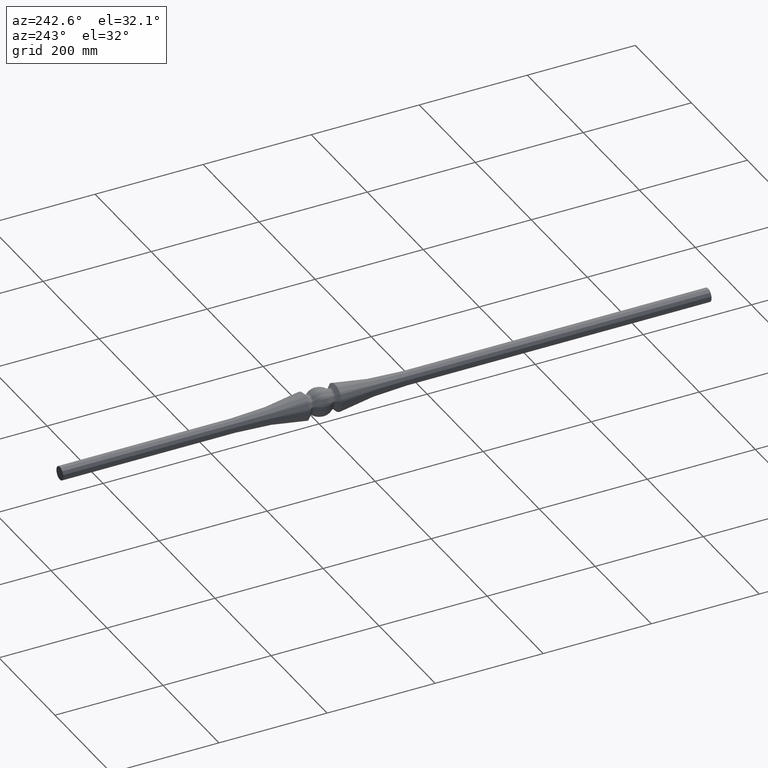
[diagram: clean part render]
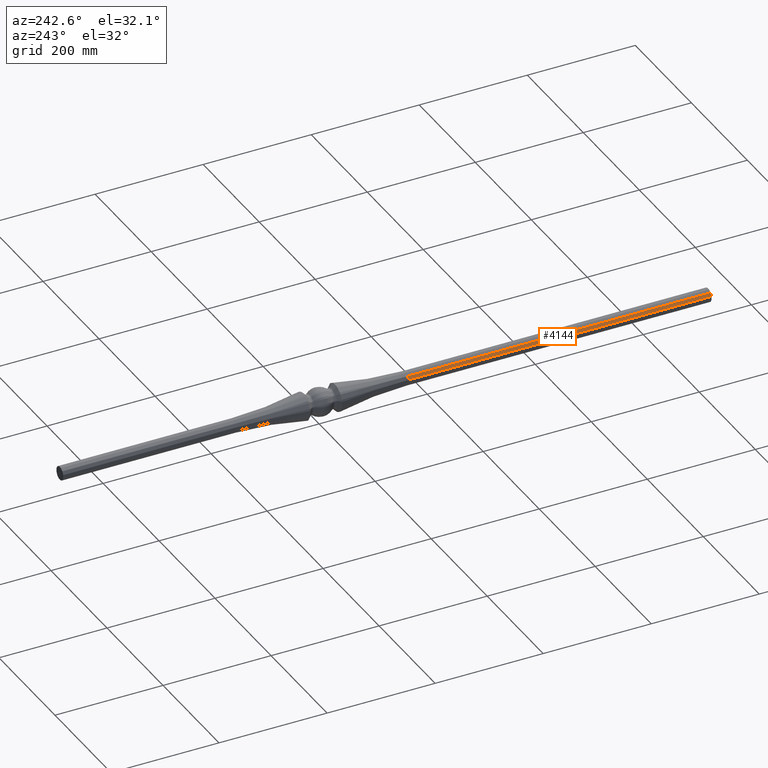
[diagram: same view with one face highlighted and labeled with its STEP entity id]
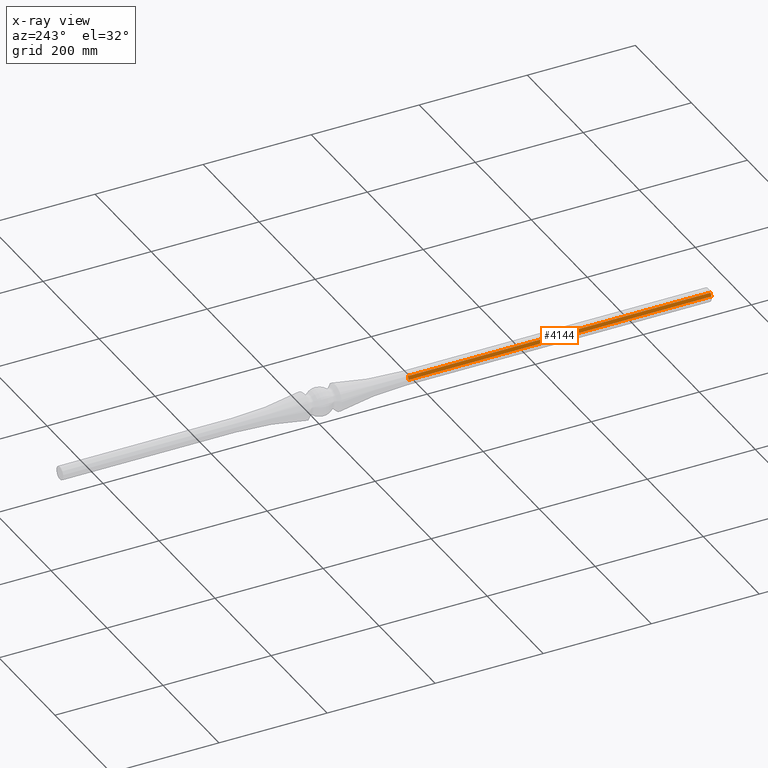
[diagram: x-ray of the same camera — body ghosted, the highlighted face saturated]
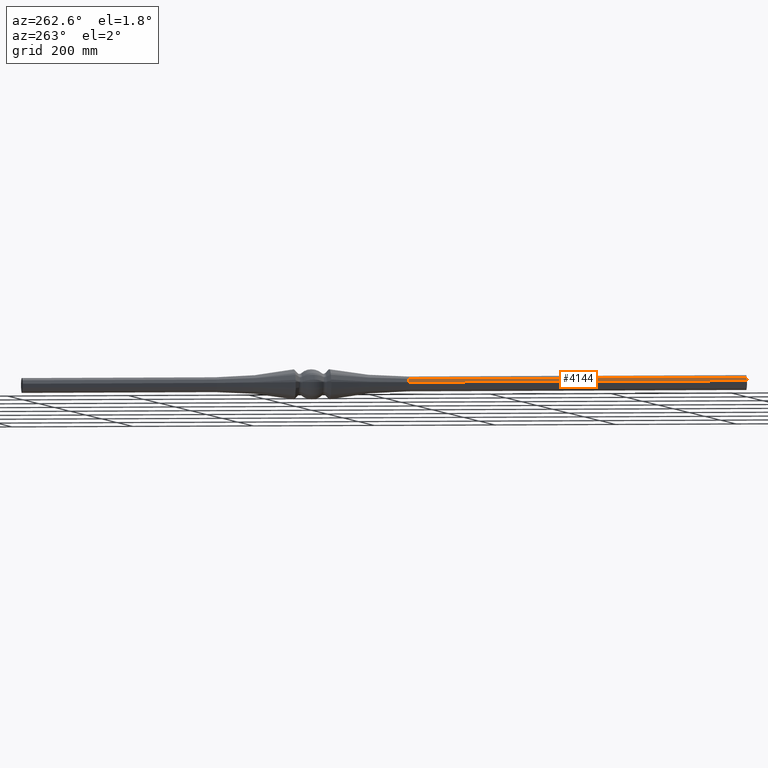
[diagram: same view with one face highlighted and labeled with its STEP entity id]
A machine part, auxiliary view. The second image highlights one B-rep face of the part: STEP entity #4144.
The next image is the same camera in x-ray: the body ghosted, the highlighted face saturated — about 0% of this face is hidden behind the body in this view.
A second angle (auxiliary view) of the same face is appended — the face is thin or edge-on in the first view.
In plain terms, the highlighted planar face has unit normal (-0.866, 0, 0.5).
Its self-contained STEP definition (entity closure, byte-faithful):
#735 = CARTESIAN_POINT ( 'NONE',  ( -12.97890738579172520, -159.4142026448495244, 1.719872981077700702 ) ) ;
#1037 = LINE ( 'NONE', #735, #7113 ) ;
#1082 = EDGE_CURVE ( 'NONE', #8901, #8524, #9434, .T. ) ;
#3408 = CARTESIAN_POINT ( 'NONE',  ( -8.910468671656079920, -159.4142026448495244, 8.766615541440925696 ) ) ;
#4024 = EDGE_LOOP ( 'NONE', ( #7781, #18603, #7009, #6211 ) ) ;
#4144 = ADVANCED_FACE ( 'NONE', ( #15886 ), #7255, .T. ) ;
#4320 = VECTOR ( 'NONE', #12440, 999.9999999999998863 ) ;
#4995 = CARTESIAN_POINT ( 'NONE',  ( -12.97890738579174830, -159.4142026448495244, 1.719872981077725793 ) ) ;
#5570 = EDGE_CURVE ( 'NONE', #5988, #8524, #14912, .T. ) ;
#5988 = VERTEX_POINT ( 'NONE', #3408 ) ;
#6211 = ORIENTED_EDGE ( 'NONE', *, *, #13151, .F. ) ;
#6495 = DIRECTION ( 'NONE',  ( -0.8660254037844415942, 2.401739750415943576E-16, 0.4999999999999949485 ) ) ;
#6554 = DIRECTION ( 'NONE',  ( 0.4999999999999949485, 0.000000000000000000, 0.8660254037844415942 ) ) ;
#7009 = ORIENTED_EDGE ( 'NONE', *, *, #7323, .T. ) ;
#7113 = VECTOR ( 'NONE', #16368, 1000.000000000000000 ) ;
#7255 = PLANE ( 'NONE',  #19127 ) ;
#7323 = EDGE_CURVE ( 'NONE', #5988, #19352, #1037, .T. ) ;
#7781 = ORIENTED_EDGE ( 'NONE', *, *, #1082, .T. ) ;
#8524 = VERTEX_POINT ( 'NONE', #12776 ) ;
#8901 = VERTEX_POINT ( 'NONE', #17578 ) ;
#9030 = VECTOR ( 'NONE', #15568, 1000.000000000000000 ) ;
#9169 = CARTESIAN_POINT ( 'NONE',  ( -12.04734609992741134, -720.0000000000000000, 3.333384458559248475 ) ) ;
#9304 = CARTESIAN_POINT ( 'NONE',  ( -12.97890738579186554, -720.0000000000000000, 1.719872981077793073 ) ) ;
#9434 = LINE ( 'NONE', #9304, #4320 ) ;
#9568 = DIRECTION ( 'NONE',  ( -0.000000000000000000, -1.000000000000000000, -0.000000000000000000 ) ) ;
#10340 = VECTOR ( 'NONE', #9568, 1000.000000000000000 ) ;
#10932 = CARTESIAN_POINT ( 'NONE',  ( -8.910468671656353479, -720.0000000000000000, 8.766615541440790693 ) ) ;
#12440 = DIRECTION ( 'NONE',  ( 0.4999999999999949485, 0.000000000000000000, 0.8660254037844415942 ) ) ;
#12776 = CARTESIAN_POINT ( 'NONE',  ( -8.910468671656349926, -720.0000000000000000, 8.766615541440796022 ) ) ;
#13140 = CARTESIAN_POINT ( 'NONE',  ( -12.04734609992748950, -159.4142026448495244, 3.333384458558770636 ) ) ;
#13151 = EDGE_CURVE ( 'NONE', #8901, #19352, #13876, .T. ) ;
#13876 = LINE ( 'NONE', #9169, #9030 ) ;
#14912 = LINE ( 'NONE', #10932, #10340 ) ;
#15568 = DIRECTION ( 'NONE',  ( 0.000000000000000000, 1.000000000000000000, 0.000000000000000000 ) ) ;
#15886 = FACE_OUTER_BOUND ( 'NONE', #4024, .T. ) ;
#16368 = DIRECTION ( 'NONE',  ( -0.4999999999999949485, 0.000000000000000000, -0.8660254037844415942 ) ) ;
#17578 = CARTESIAN_POINT ( 'NONE',  ( -12.04734609992741312, -720.0000000000000000, 3.333384458559240038 ) ) ;
#18603 = ORIENTED_EDGE ( 'NONE', *, *, #5570, .F. ) ;
#19127 = AXIS2_PLACEMENT_3D ( 'NONE', #4995, #6495, #6554 ) ;
#19352 = VERTEX_POINT ( 'NONE', #13140 ) ;